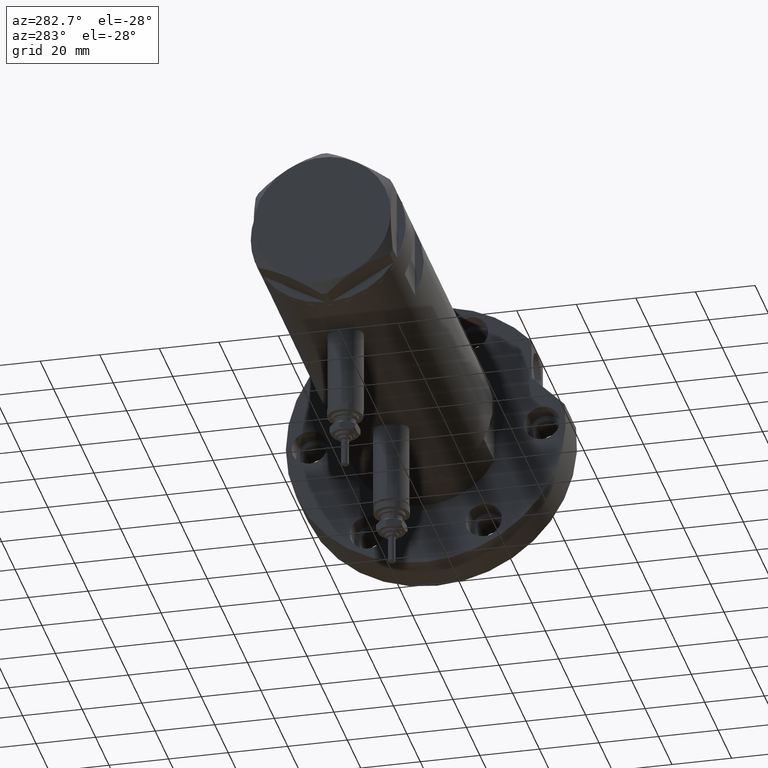
[diagram: clean part render]
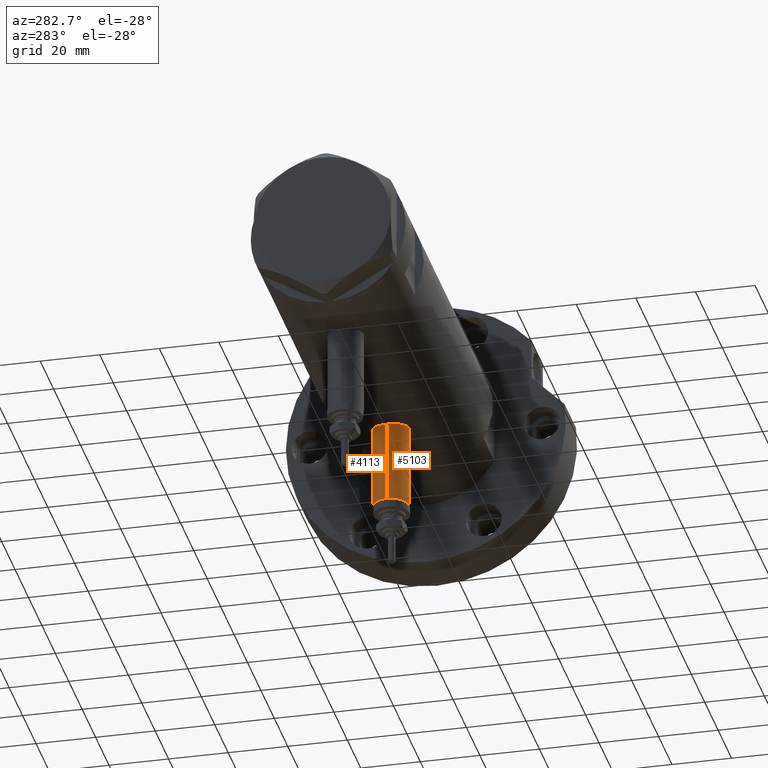
[diagram: same view with one multi-face feature highlighted, each face labeled with its STEP entity id]
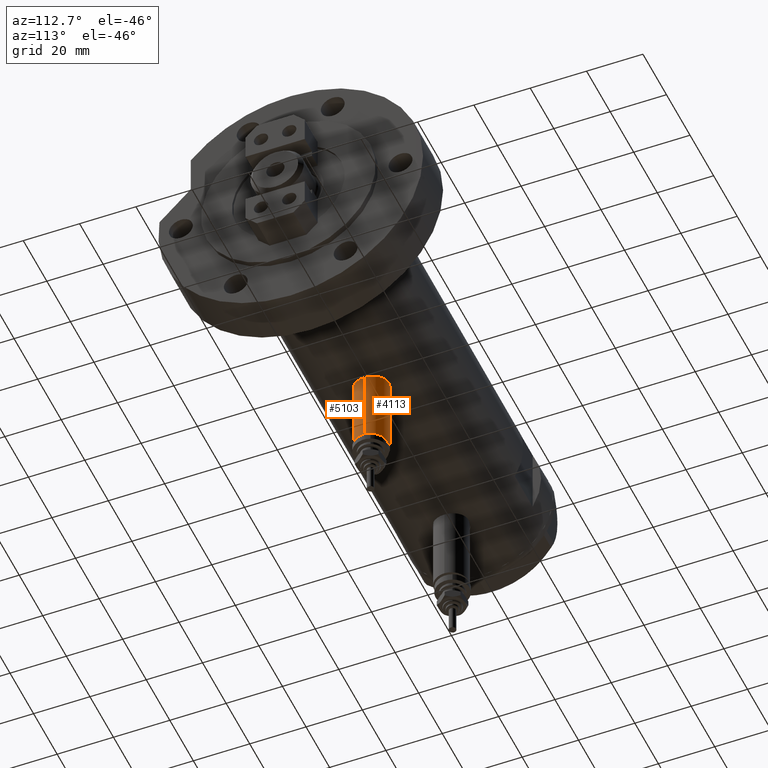
[diagram: same view with one multi-face feature highlighted, each face labeled with its STEP entity id]
A machine part, auxiliary view. The highlighted faces form ONE feature: a constant-radius fillet chain: 2 tangent blend faces with common blend radius 6 mm. The faces share edges in the B-rep.
A second angle (auxiliary view) of the same feature is appended — it is thin or edge-on in the first view.
Their STEP definitions:
[1] entity #5103 (Cylinder):
#13 = CARTESIAN_POINT ( 'NONE',  ( -24.80000000000000426, 7.347880794884123680E-16, -21.65000000000000213 ) ) ;
#93 = AXIS2_PLACEMENT_3D ( 'NONE', #8347, #1184, #407 ) ;
#168 = ORIENTED_EDGE ( 'NONE', *, *, #3662, .F. ) ;
#208 = VERTEX_POINT ( 'NONE', #13 ) ;
#246 = DIRECTION ( 'NONE',  ( 0.000000000000000000, 0.000000000000000000, 1.000000000000000000 ) ) ;
#370 = LINE ( 'NONE', #1010, #2483 ) ;
#407 = DIRECTION ( 'NONE',  ( 0.000000000000000000, 0.000000000000000000, -1.000000000000000000 ) ) ;
#456 = DIRECTION ( 'NONE',  ( 1.000000000000000000, -0.000000000000000000, -0.000000000000000000 ) ) ;
#1010 = CARTESIAN_POINT ( 'NONE',  ( -53.40000000000000568, 7.347880794884122694E-16, -21.65000000000000568 ) ) ;
#1184 = DIRECTION ( 'NONE',  ( 1.000000000000000000, -0.000000000000000000, -0.000000000000000000 ) ) ;
#1718 = CYLINDRICAL_SURFACE ( 'NONE', #93, 6.000000000000005329 ) ;
#1762 = LINE ( 'NONE', #3100, #6902 ) ;
#2131 = EDGE_LOOP ( 'NONE', ( #168, #2432, #7033, #5667 ) ) ;
#2432 = ORIENTED_EDGE ( 'NONE', *, *, #6362, .F. ) ;
#2483 = VECTOR ( 'NONE', #6220, 1000.000000000000000 ) ;
#3041 = EDGE_CURVE ( 'NONE', #4912, #3135, #1762, .T. ) ;
#3047 = FACE_OUTER_BOUND ( 'NONE', #2131, .T. ) ;
#3100 = CARTESIAN_POINT ( 'NONE',  ( -53.40000000000000568, 0.000000000000000000, -33.65000000000001279 ) ) ;
#3135 = VERTEX_POINT ( 'NONE', #5243 ) ;
#3662 = EDGE_CURVE ( 'NONE', #4932, #208, #370, .T. ) ;
#3723 = DIRECTION ( 'NONE',  ( -1.000000000000000000, 0.000000000000000000, 0.000000000000000000 ) ) ;
#4270 = CARTESIAN_POINT ( 'NONE',  ( -53.40000000000000568, 0.000000000000000000, -27.65000000000000924 ) ) ;
#4912 = VERTEX_POINT ( 'NONE', #7175 ) ;
#4932 = VERTEX_POINT ( 'NONE', #5866 ) ;
#5037 = DIRECTION ( 'NONE',  ( -1.000000000000000000, 0.000000000000000000, 0.000000000000000000 ) ) ;
#5094 = DIRECTION ( 'NONE',  ( 0.000000000000000000, 0.000000000000000000, 1.000000000000000000 ) ) ;
#5103 = ADVANCED_FACE ( 'NONE', ( #3047 ), #1718, .T. ) ;
#5243 = CARTESIAN_POINT ( 'NONE',  ( -24.80000000000000426, 0.000000000000000000, -33.65000000000001279 ) ) ;
#5543 = AXIS2_PLACEMENT_3D ( 'NONE', #8375, #3723, #5094 ) ;
#5667 = ORIENTED_EDGE ( 'NONE', *, *, #7001, .T. ) ;
#5678 = CIRCLE ( 'NONE', #5543, 6.000000000000001776 ) ;
#5866 = CARTESIAN_POINT ( 'NONE',  ( -53.40000000000000568, 7.347880794884123680E-16, -21.65000000000000213 ) ) ;
#6220 = DIRECTION ( 'NONE',  ( 1.000000000000000000, -0.000000000000000000, -0.000000000000000000 ) ) ;
#6362 = EDGE_CURVE ( 'NONE', #4912, #4932, #7388, .T. ) ;
#6902 = VECTOR ( 'NONE', #456, 1000.000000000000000 ) ;
#7001 = EDGE_CURVE ( 'NONE', #3135, #208, #5678, .T. ) ;
#7033 = ORIENTED_EDGE ( 'NONE', *, *, #3041, .T. ) ;
#7175 = CARTESIAN_POINT ( 'NONE',  ( -53.40000000000000568, 0.000000000000000000, -33.65000000000001279 ) ) ;
#7388 = CIRCLE ( 'NONE', #7680, 6.000000000000001776 ) ;
#7680 = AXIS2_PLACEMENT_3D ( 'NONE', #4270, #5037, #246 ) ;
#8347 = CARTESIAN_POINT ( 'NONE',  ( -53.40000000000000568, 0.000000000000000000, -27.65000000000000924 ) ) ;
#8375 = CARTESIAN_POINT ( 'NONE',  ( -24.80000000000000426, 0.000000000000000000, -27.65000000000000924 ) ) ;
[2] entity #4113 (Cylinder):
#13 = CARTESIAN_POINT ( 'NONE',  ( -24.80000000000000426, 7.347880794884123680E-16, -21.65000000000000213 ) ) ;
#208 = VERTEX_POINT ( 'NONE', #13 ) ;
#370 = LINE ( 'NONE', #1010, #2483 ) ;
#456 = DIRECTION ( 'NONE',  ( 1.000000000000000000, -0.000000000000000000, -0.000000000000000000 ) ) ;
#475 = CIRCLE ( 'NONE', #6465, 6.000000000000001776 ) ;
#503 = AXIS2_PLACEMENT_3D ( 'NONE', #8483, #3660, #1668 ) ;
#570 = EDGE_CURVE ( 'NONE', #208, #3135, #475, .T. ) ;
#614 = DIRECTION ( 'NONE',  ( 0.000000000000000000, 0.000000000000000000, 1.000000000000000000 ) ) ;
#692 = ORIENTED_EDGE ( 'NONE', *, *, #3662, .T. ) ;
#1010 = CARTESIAN_POINT ( 'NONE',  ( -53.40000000000000568, 7.347880794884122694E-16, -21.65000000000000568 ) ) ;
#1220 = ORIENTED_EDGE ( 'NONE', *, *, #3041, .F. ) ;
#1307 = DIRECTION ( 'NONE',  ( -1.000000000000000000, 0.000000000000000000, 0.000000000000000000 ) ) ;
#1668 = DIRECTION ( 'NONE',  ( 0.000000000000000000, 0.000000000000000000, -1.000000000000000000 ) ) ;
#1762 = LINE ( 'NONE', #3100, #6902 ) ;
#1850 = CYLINDRICAL_SURFACE ( 'NONE', #503, 6.000000000000005329 ) ;
#2258 = EDGE_LOOP ( 'NONE', ( #3050, #692, #8563, #1220 ) ) ;
#2483 = VECTOR ( 'NONE', #6220, 1000.000000000000000 ) ;
#2613 = CARTESIAN_POINT ( 'NONE',  ( -24.80000000000000426, 0.000000000000000000, -27.65000000000000924 ) ) ;
#2996 = FACE_OUTER_BOUND ( 'NONE', #2258, .T. ) ;
#3015 = DIRECTION ( 'NONE',  ( -1.000000000000000000, 0.000000000000000000, 0.000000000000000000 ) ) ;
#3041 = EDGE_CURVE ( 'NONE', #4912, #3135, #1762, .T. ) ;
#3050 = ORIENTED_EDGE ( 'NONE', *, *, #5681, .F. ) ;
#3100 = CARTESIAN_POINT ( 'NONE',  ( -53.40000000000000568, 0.000000000000000000, -33.65000000000001279 ) ) ;
#3135 = VERTEX_POINT ( 'NONE', #5243 ) ;
#3317 = CIRCLE ( 'NONE', #8224, 6.000000000000001776 ) ;
#3660 = DIRECTION ( 'NONE',  ( 1.000000000000000000, -0.000000000000000000, -0.000000000000000000 ) ) ;
#3662 = EDGE_CURVE ( 'NONE', #4932, #208, #370, .T. ) ;
#4113 = ADVANCED_FACE ( 'NONE', ( #2996 ), #1850, .T. ) ;
#4912 = VERTEX_POINT ( 'NONE', #7175 ) ;
#4932 = VERTEX_POINT ( 'NONE', #5866 ) ;
#5243 = CARTESIAN_POINT ( 'NONE',  ( -24.80000000000000426, 0.000000000000000000, -33.65000000000001279 ) ) ;
#5681 = EDGE_CURVE ( 'NONE', #4932, #4912, #3317, .T. ) ;
#5866 = CARTESIAN_POINT ( 'NONE',  ( -53.40000000000000568, 7.347880794884123680E-16, -21.65000000000000213 ) ) ;
#6220 = DIRECTION ( 'NONE',  ( 1.000000000000000000, -0.000000000000000000, -0.000000000000000000 ) ) ;
#6465 = AXIS2_PLACEMENT_3D ( 'NONE', #2613, #1307, #614 ) ;
#6902 = VECTOR ( 'NONE', #456, 1000.000000000000000 ) ;
#6984 = CARTESIAN_POINT ( 'NONE',  ( -53.40000000000000568, 0.000000000000000000, -27.65000000000000924 ) ) ;
#7024 = DIRECTION ( 'NONE',  ( 0.000000000000000000, 0.000000000000000000, 1.000000000000000000 ) ) ;
#7175 = CARTESIAN_POINT ( 'NONE',  ( -53.40000000000000568, 0.000000000000000000, -33.65000000000001279 ) ) ;
#8224 = AXIS2_PLACEMENT_3D ( 'NONE', #6984, #3015, #7024 ) ;
#8483 = CARTESIAN_POINT ( 'NONE',  ( -53.40000000000000568, 0.000000000000000000, -27.65000000000000924 ) ) ;
#8563 = ORIENTED_EDGE ( 'NONE', *, *, #570, .T. ) ;